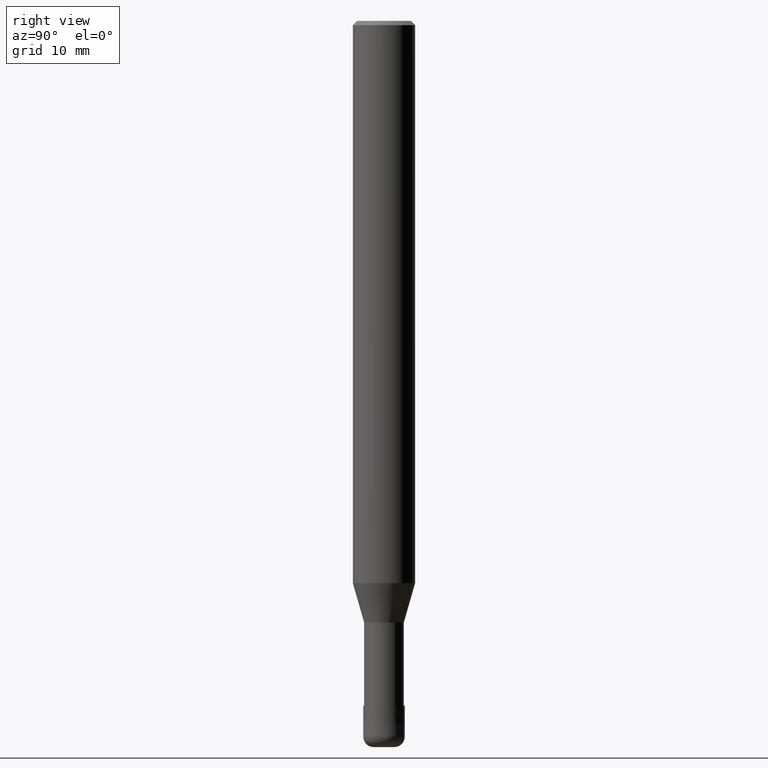
[diagram: clean part render]
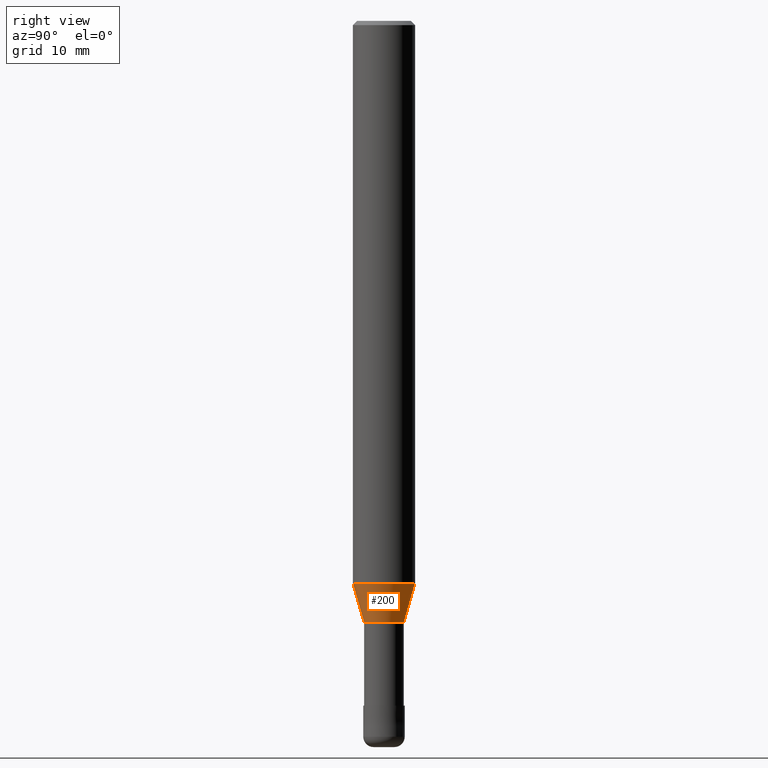
[diagram: same view with one face highlighted and labeled with its STEP entity id]
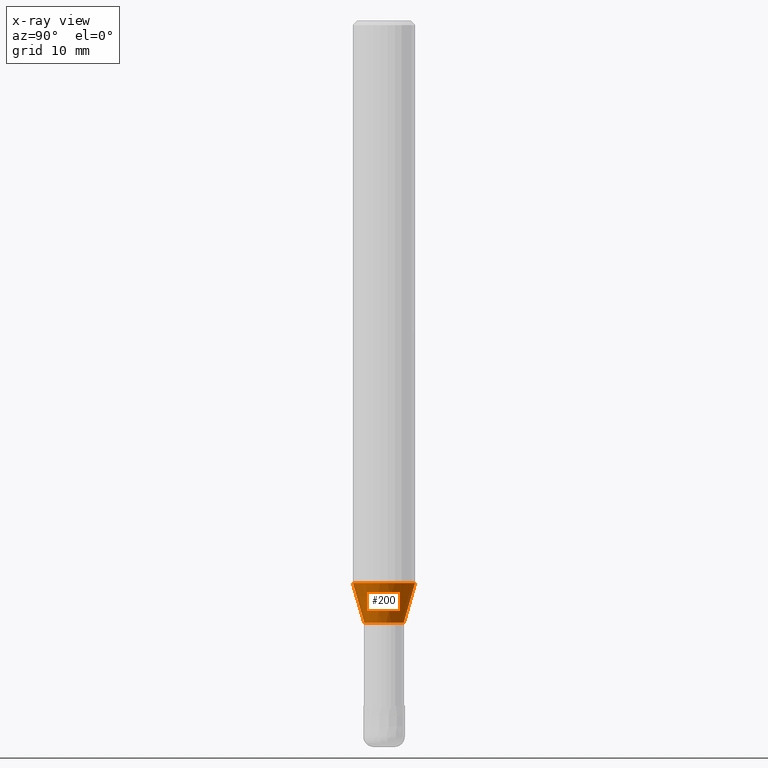
[diagram: x-ray of the same camera — body ghosted, the highlighted face saturated]
A machine part, right view. The second image highlights one B-rep face of the part: STEP entity #200.
The next image is the same camera in x-ray: the body ghosted, the highlighted face saturated — about 0% of this face is hidden behind the body in this view.
In plain terms, the highlighted conical surface has half-angle 16.001 deg.
Its self-contained STEP definition (entity closure, byte-faithful):
#118=EDGE_CURVE('',#158,#182,#274,.T.);
#142=VERTEX_POINT('',#301);
#144=VERTEX_POINT('',#303);
#150=EDGE_CURVE('',#142,#158,#310,.T.);
#158=VERTEX_POINT('',#318);
#182=VERTEX_POINT('',#346);
#200=ADVANCED_FACE('',(#365),#366,.T.);
#206=EDGE_CURVE('',#142,#144,#373,.T.);
#224=EDGE_CURVE('',#182,#144,#395,.T.);
#274=CIRCLE('',#444,1.90995);
#301=CARTESIAN_POINT('',(0.0,2.99995,-54.199));
#303=CARTESIAN_POINT('',(3.67375783114944E-016,-2.99995,-54.199));
#310=LINE('',#489,#490);
#318=CARTESIAN_POINT('',(0.0,1.90995,-58.0));
#346=CARTESIAN_POINT('',(2.33893690548305E-016,-1.90995,-58.0));
#365=FACE_OUTER_BOUND('',#558,.T.);
#366=CONICAL_SURFACE('',#559,2.45495,0.279272319969089);
#373=CIRCLE('',#569,2.99995);
#395=LINE('',#593,#594);
#444=AXIS2_PLACEMENT_3D('',#641,#642,#643);
#489=CARTESIAN_POINT('',(-3.00634736831625E-016,2.45495,-56.0995));
#490=VECTOR('',#688,1.0);
#558=EDGE_LOOP('',(#749,#750,#751,#752));
#559=AXIS2_PLACEMENT_3D('',#753,#754,#755);
#569=AXIS2_PLACEMENT_3D('',#765,#766,#767);
#593=CARTESIAN_POINT('',(3.00634736831625E-016,-2.45495,-56.0995));
#594=VECTOR('',#799,1.0);
#641=CARTESIAN_POINT('',(0.0,0.0,-58.0));
#642=DIRECTION('',(0.0,0.0,-1.0));
#643=DIRECTION('',(0.0,1.0,0.0));
#688=DIRECTION('',(3.37570376370609E-017,-0.275656234607102,-0.961256282331738));
#749=ORIENTED_EDGE('',*,*,#150,.F.);
#750=ORIENTED_EDGE('',*,*,#206,.T.);
#751=ORIENTED_EDGE('',*,*,#224,.F.);
#752=ORIENTED_EDGE('',*,*,#118,.F.);
#753=CARTESIAN_POINT('',(0.0,0.0,-56.0995));
#754=DIRECTION('',(-0.0,-0.0,1.0));
#755=DIRECTION('',(0.0,1.0,0.0));
#765=CARTESIAN_POINT('',(0.0,0.0,-54.199));
#766=DIRECTION('',(0.0,0.0,-1.0));
#767=DIRECTION('',(0.0,1.0,0.0));
#799=DIRECTION('',(3.37570376370609E-017,-0.275656234607102,0.961256282331738));